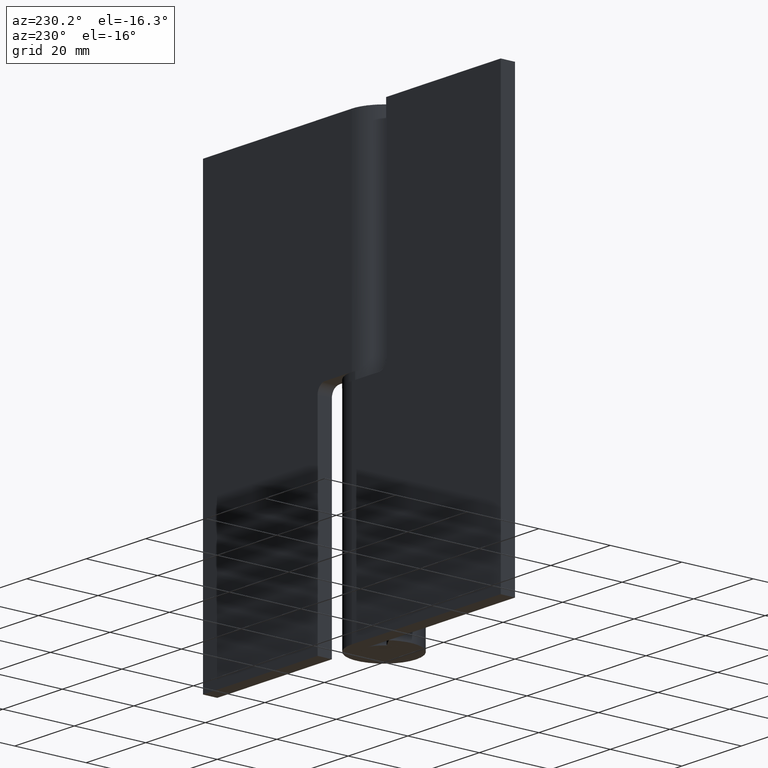
[diagram: clean part render]
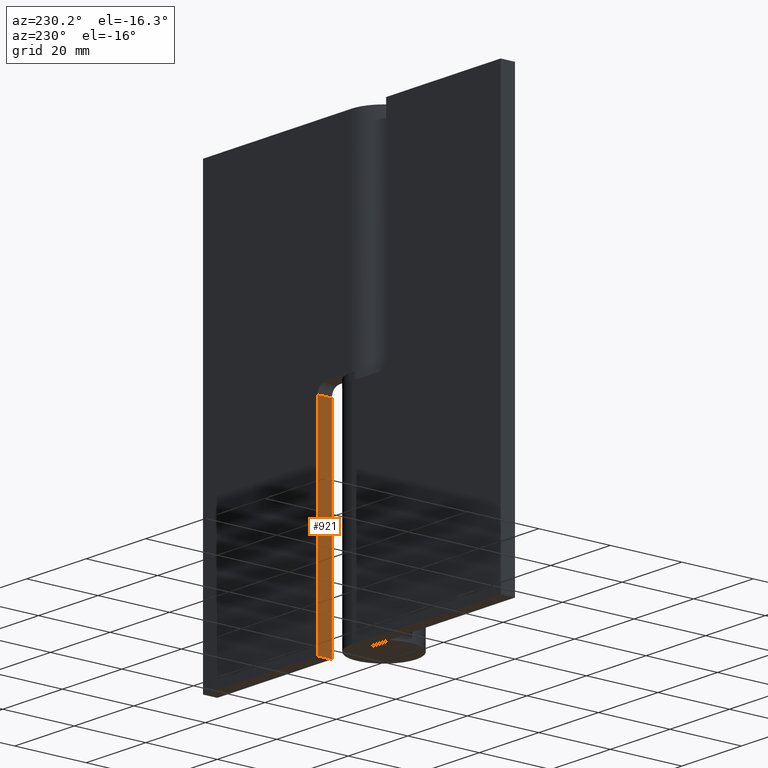
[diagram: same view with one face highlighted and labeled with its STEP entity id]
A machine part, auxiliary view. The second image highlights one B-rep face of the part: STEP entity #921.
In plain terms, the highlighted face is a freeform B-spline surface patch.
Its self-contained STEP definition (entity closure, byte-faithful):
#886=CARTESIAN_POINT('',(11.500000000000000,4.800200007752776,61.422074886615647));
#887=CARTESIAN_POINT('',(11.500000000000000,4.800200007752776,-2.922076455707923));
#888=CARTESIAN_POINT('',(11.500000000000000,9.199800099535585,61.422074886615647));
#889=CARTESIAN_POINT('',(11.500000000000000,9.199800099535585,-2.922076455707923));
#890=B_SPLINE_SURFACE_WITH_KNOTS('',1,1,((#886,#888),(#887,#889)),.UNSPECIFIED.,.F.,.F.,.U.,(2,2),(2,2),(0.0,64.344151342323570),(0.0,4.399600091782809),.UNSPECIFIED.);
#891=CARTESIAN_POINT('',(11.500000000000000,9.0,58.500000000000000));
#892=VERTEX_POINT('',#891);
#893=CARTESIAN_POINT('',(11.500000000000000,5.0,58.500000000000000));
#894=VERTEX_POINT('',#893);
#895=CARTESIAN_POINT('',(11.500000000000000,9.0,58.500000000000000));
#896=CARTESIAN_POINT('',(11.500000000000000,5.0,58.500000000000000));
#897=QUASI_UNIFORM_CURVE('',1,(#895,#896),.UNSPECIFIED.,.F.,.U.);
#898=EDGE_CURVE('',#892,#894,#897,.T.);
#899=ORIENTED_EDGE('',*,*,#898,.F.);
#900=CARTESIAN_POINT('',(11.500000000000000,9.0,0.0));
#901=VERTEX_POINT('',#900);
#902=CARTESIAN_POINT('',(11.500000000000000,9.0,0.0));
#903=CARTESIAN_POINT('',(11.500000000000000,9.0,58.500000000000000));
#904=QUASI_UNIFORM_CURVE('',1,(#902,#903),.UNSPECIFIED.,.F.,.U.);
#905=EDGE_CURVE('',#901,#892,#904,.T.);
#906=ORIENTED_EDGE('',*,*,#905,.F.);
#907=CARTESIAN_POINT('',(11.500000000000000,5.0,0.0));
#908=VERTEX_POINT('',#907);
#909=CARTESIAN_POINT('',(11.500000000000000,9.0,0.0));
#910=CARTESIAN_POINT('',(11.500000000000000,5.0,0.0));
#911=QUASI_UNIFORM_CURVE('',1,(#909,#910),.UNSPECIFIED.,.F.,.U.);
#912=EDGE_CURVE('',#901,#908,#911,.T.);
#913=ORIENTED_EDGE('',*,*,#912,.T.);
#914=CARTESIAN_POINT('',(11.500000000000000,5.0,58.500000000000000));
#915=CARTESIAN_POINT('',(11.500000000000000,5.0,0.0));
#916=QUASI_UNIFORM_CURVE('',1,(#914,#915),.UNSPECIFIED.,.F.,.U.);
#917=EDGE_CURVE('',#894,#908,#916,.T.);
#918=ORIENTED_EDGE('',*,*,#917,.F.);
#919=EDGE_LOOP('',(#899,#906,#913,#918));
#920=FACE_OUTER_BOUND('',#919,.T.);
#921=ADVANCED_FACE('',(#920),#890,.F.);